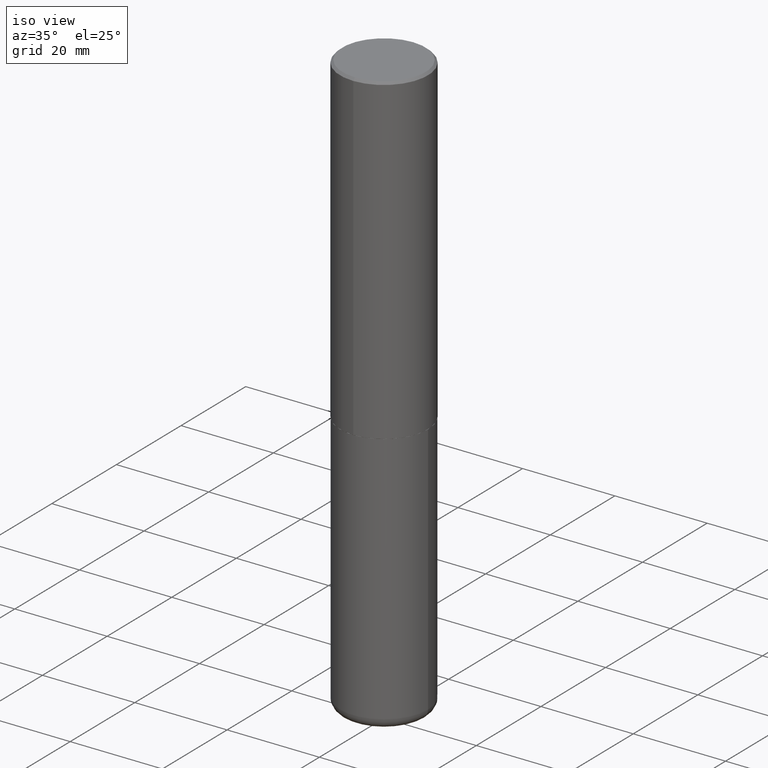
[diagram: clean part render]
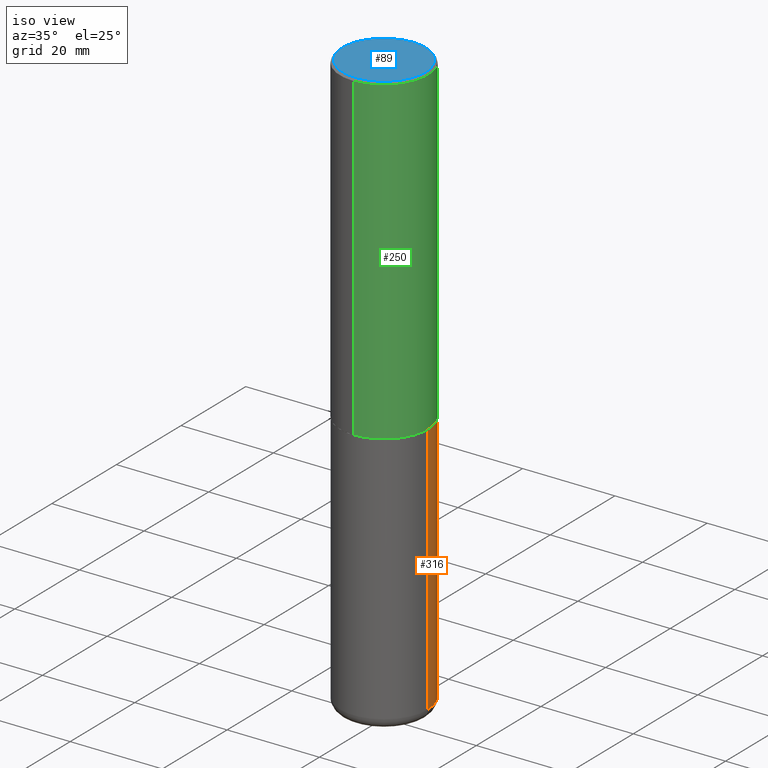
[diagram: same view with three faces highlighted in distinct colors, each labeled with its STEP entity id]
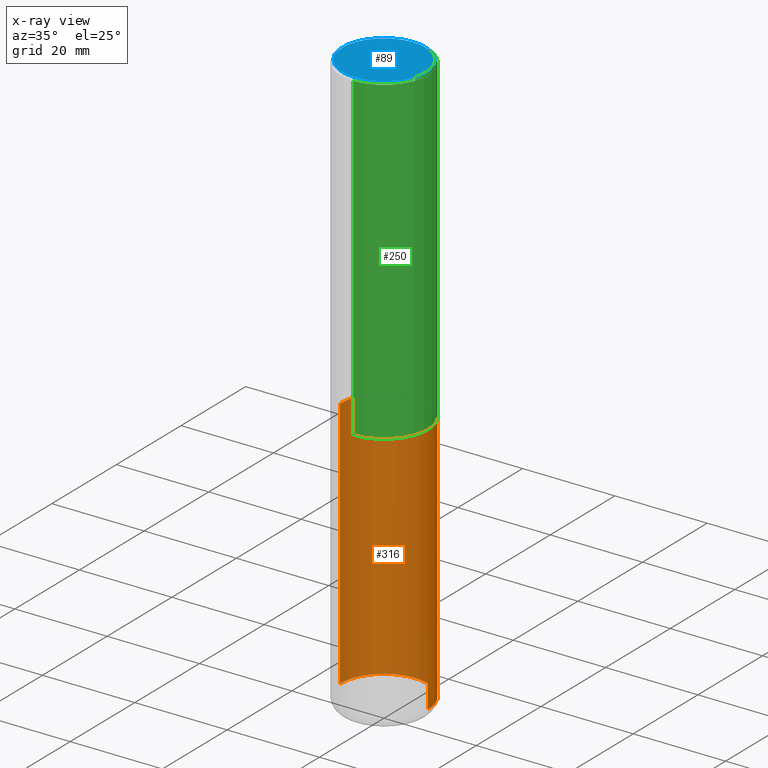
[diagram: x-ray of the same camera — body ghosted, the three highlighted faces saturated]
A machine part, iso view with three faces highlighted in distinct colors.
The next image is the same camera in x-ray (body ghosted, the three faces saturated) — at least one of them is partly hidden behind the body in this view.
Their STEP definitions:

[orange] entity #316 — the highlighted cylindrical surface (partial cylindrical patch) has radius 9.525 mm, axis along (-0, 0, 1).
#2 = ORIENTED_EDGE ( 'NONE', *, *, #14, .T. ) ;
#4 = DIRECTION ( 'NONE',  ( -2.445468806185136877E-29, 3.491481338843145188E-15, 1.000000000000000000 ) ) ;
#11 = LINE ( 'NONE', #202, #33 ) ;
#14 = EDGE_CURVE ( 'NONE', #337, #113, #383, .T. ) ;
#33 = VECTOR ( 'NONE', #4, 39.37007874015748143 ) ;
#45 = ORIENTED_EDGE ( 'NONE', *, *, #342, .F. ) ;
#54 = ORIENTED_EDGE ( 'NONE', *, *, #99, .T. ) ;
#67 = DIRECTION ( 'NONE',  ( 1.000000000000000000, -6.982962677686266711E-15, 4.876176775795935793E-29 ) ) ;
#91 = VECTOR ( 'NONE', #230, 39.37007874015748143 ) ;
#98 = CARTESIAN_POINT ( 'NONE',  ( -0.3749999999999999445, 2.664535259100375303E-15, -1.844600658845589318E-29 ) ) ;
#99 = EDGE_CURVE ( 'NONE', #310, #337, #109, .T. ) ;
#109 = CIRCLE ( 'NONE', #394, 0.3749999999999999445 ) ;
#113 = VERTEX_POINT ( 'NONE', #204 ) ;
#114 = EDGE_CURVE ( 'NONE', #310, #218, #11, .T. ) ;
#115 = CIRCLE ( 'NONE', #339, 0.3750000000000000555 ) ;
#125 = CARTESIAN_POINT ( 'NONE',  ( 6.725039217009124520E-29, -9.601573681818649859E-15, -2.750000000000000000 ) ) ;
#132 = DIRECTION ( 'NONE',  ( -2.445468806185136597E-29, 3.491481338843145583E-15, 1.000000000000000000 ) ) ;
#134 = CYLINDRICAL_SURFACE ( 'NONE', #246, 0.3749999999999999445 ) ;
#159 = ORIENTED_EDGE ( 'NONE', *, *, #114, .F. ) ;
#202 = CARTESIAN_POINT ( 'NONE',  ( 0.3749999999999999445, -2.618611004132349622E-15, 1.828566290923475642E-29 ) ) ;
#204 = CARTESIAN_POINT ( 'NONE',  ( -0.3750000000000000555, -1.070783826866887333E-14, -2.750000000000000000 ) ) ;
#218 = VERTEX_POINT ( 'NONE', #363 ) ;
#221 = CARTESIAN_POINT ( 'NONE',  ( 0.3749999999999999445, -1.976178437785219664E-14, -4.910000000000000142 ) ) ;
#228 = DIRECTION ( 'NONE',  ( -2.445468806185136597E-29, 3.491481338843145583E-15, 1.000000000000000000 ) ) ;
#230 = DIRECTION ( 'NONE',  ( -2.445468806185136877E-29, 3.491481338843145188E-15, 1.000000000000000000 ) ) ;
#246 = AXIS2_PLACEMENT_3D ( 'NONE', #264, #254, #67 ) ;
#252 = DIRECTION ( 'NONE',  ( 1.000000000000000000, -6.982962677686266711E-15, 0.000000000000000000 ) ) ;
#254 = DIRECTION ( 'NONE',  ( -2.445468806185136597E-29, 3.491481338843145583E-15, 1.000000000000000000 ) ) ;
#263 = EDGE_LOOP ( 'NONE', ( #54, #2, #45, #159 ) ) ;
#264 = CARTESIAN_POINT ( 'NONE',  ( 0.000000000000000000, 0.000000000000000000, 0.000000000000000000 ) ) ;
#301 = DIRECTION ( 'NONE',  ( 1.000000000000000000, -6.982962677686269077E-15, 0.000000000000000000 ) ) ;
#310 = VERTEX_POINT ( 'NONE', #221 ) ;
#316 = ADVANCED_FACE ( 'NONE', ( #324 ), #134, .T. ) ;
#319 = CARTESIAN_POINT ( 'NONE',  ( -0.3749999999999999445, -1.447863811461947092E-14, -4.910000000000000142 ) ) ;
#320 = CARTESIAN_POINT ( 'NONE',  ( 1.200725183836902132E-28, -1.714317337371984662E-14, -4.910000000000000142 ) ) ;
#324 = FACE_OUTER_BOUND ( 'NONE', #263, .T. ) ;
#337 = VERTEX_POINT ( 'NONE', #319 ) ;
#339 = AXIS2_PLACEMENT_3D ( 'NONE', #125, #132, #252 ) ;
#342 = EDGE_CURVE ( 'NONE', #218, #113, #115, .T. ) ;
#363 = CARTESIAN_POINT ( 'NONE',  ( 0.3750000000000000555, -1.222018468595100145E-14, -2.750000000000000000 ) ) ;
#383 = LINE ( 'NONE', #98, #91 ) ;
#394 = AXIS2_PLACEMENT_3D ( 'NONE', #320, #228, #301 ) ;

[blue] entity #89 — the highlighted planar face has unit normal (0, -0, -1).
#15 = AXIS2_PLACEMENT_3D ( 'NONE', #198, #345, #162 ) ;
#62 = DIRECTION ( 'NONE',  ( 2.446040391741596045E-29, -3.490662795793665557E-15, -1.000000000000000000 ) ) ;
#89 = ADVANCED_FACE ( 'NONE', ( #129 ), #257, .F. ) ;
#103 = CARTESIAN_POINT ( 'NONE',  ( -2.504081769186608216E-15, -0.3549999999999999822, 1.285848347115290366E-15 ) ) ;
#129 = FACE_OUTER_BOUND ( 'NONE', #280, .T. ) ;
#148 = AXIS2_PLACEMENT_3D ( 'NONE', #176, #361, #332 ) ;
#162 = DIRECTION ( 'NONE',  ( -6.982962677686265922E-15, -1.000000000000000000, 3.490662795793665557E-15 ) ) ;
#176 = CARTESIAN_POINT ( 'NONE',  ( -1.141397163745304909E-45, 1.628849886601155835E-31, 4.666305460853910467E-17 ) ) ;
#177 = EDGE_CURVE ( 'NONE', #215, #220, #185, .T. ) ;
#185 = CIRCLE ( 'NONE', #148, 0.3549999999999999822 ) ;
#198 = CARTESIAN_POINT ( 'NONE',  ( -1.141397163745304909E-45, 1.628849886601155835E-31, 4.666305460853910467E-17 ) ) ;
#215 = VERTEX_POINT ( 'NONE', #357 ) ;
#220 = VERTEX_POINT ( 'NONE', #103 ) ;
#240 = CIRCLE ( 'NONE', #15, 0.3549999999999999822 ) ;
#257 = PLANE ( 'NONE',  #292 ) ;
#280 = EDGE_LOOP ( 'NONE', ( #341, #312 ) ) ;
#292 = AXIS2_PLACEMENT_3D ( 'NONE', #349, #62, #380 ) ;
#312 = ORIENTED_EDGE ( 'NONE', *, *, #325, .T. ) ;
#325 = EDGE_CURVE ( 'NONE', #220, #215, #240, .T. ) ;
#332 = DIRECTION ( 'NONE',  ( -6.982962677686265922E-15, -1.000000000000000000, 3.490662795793665557E-15 ) ) ;
#341 = ORIENTED_EDGE ( 'NONE', *, *, #177, .T. ) ;
#345 = DIRECTION ( 'NONE',  ( -2.446040391741596606E-29, 3.490662795793665557E-15, 1.000000000000000000 ) ) ;
#349 = CARTESIAN_POINT ( 'NONE',  ( 2.478951750578624209E-15, 0.3549999999999999822, -1.215853765202481601E-15 ) ) ;
#357 = CARTESIAN_POINT ( 'NONE',  ( 2.548781377355487113E-15, 0.3549999999999999822, -1.192522237898212341E-15 ) ) ;
#361 = DIRECTION ( 'NONE',  ( -2.446040391741596606E-29, 3.490662795793665557E-15, 1.000000000000000000 ) ) ;
#380 = DIRECTION ( 'NONE',  ( 6.982962677686265922E-15, 1.000000000000000000, -3.490662795793665557E-15 ) ) ;

[green] entity #250 — the highlighted cylindrical surface (partial cylindrical patch) has radius 9.525 mm, axis along (-0, 0, 1).
#3 = DIRECTION ( 'NONE',  ( -2.446040391741596606E-29, 3.490662795793665557E-15, 1.000000000000000000 ) ) ;
#6 = LINE ( 'NONE', #140, #92 ) ;
#20 = AXIS2_PLACEMENT_3D ( 'NONE', #350, #260, #137 ) ;
#28 = DIRECTION ( 'NONE',  ( -6.982962677686265922E-15, -1.000000000000000000, 3.494488891895536035E-15 ) ) ;
#30 = DIRECTION ( 'NONE',  ( -2.446040391741596606E-29, 3.490662795793665557E-15, 1.000000000000000000 ) ) ;
#31 = ORIENTED_EDGE ( 'NONE', *, *, #298, .T. ) ;
#35 = DIRECTION ( 'NONE',  ( -6.982962677686265922E-15, -1.000000000000000000, 2.913971193241877611E-15 ) ) ;
#47 = VERTEX_POINT ( 'NONE', #126 ) ;
#48 = AXIS2_PLACEMENT_3D ( 'NONE', #96, #197, #28 ) ;
#55 = ORIENTED_EDGE ( 'NONE', *, *, #335, .T. ) ;
#61 = CARTESIAN_POINT ( 'NONE',  ( 2.664535259100376880E-15, 0.3750000000000002220, -1.308998548422625521E-15 ) ) ;
#64 = VERTEX_POINT ( 'NONE', #251 ) ;
#84 = EDGE_CURVE ( 'NONE', #47, #64, #239, .T. ) ;
#92 = VECTOR ( 'NONE', #3, 39.37007874015748143 ) ;
#96 = CARTESIAN_POINT ( 'NONE',  ( 4.892080783483214581E-31, -6.981325591587361238E-17, -0.02000000000000008715 ) ) ;
#110 = CIRCLE ( 'NONE', #366, 0.3750000000000003886 ) ;
#126 = CARTESIAN_POINT ( 'NONE',  ( -2.572686749164323547E-15, -0.3750000000000001110, -0.01999999999999877570 ) ) ;
#137 = DIRECTION ( 'NONE',  ( -6.982962677686266711E-15, -1.000000000000000000, 3.490662795793665951E-15 ) ) ;
#140 = CARTESIAN_POINT ( 'NONE',  ( -2.618611004132351594E-15, -0.3750000000000002220, 1.308998548422625521E-15 ) ) ;
#197 = DIRECTION ( 'NONE',  ( -2.446040391741596606E-29, 3.490662795793665557E-15, 1.000000000000000000 ) ) ;
#217 = ORIENTED_EDGE ( 'NONE', *, *, #84, .F. ) ;
#226 = EDGE_CURVE ( 'NONE', #247, #47, #6, .T. ) ;
#227 = FACE_OUTER_BOUND ( 'NONE', #405, .T. ) ;
#239 = CIRCLE ( 'NONE', #48, 0.3750000000000000555 ) ;
#247 = VERTEX_POINT ( 'NONE', #374 ) ;
#250 = ADVANCED_FACE ( 'NONE', ( #227 ), #377, .T. ) ;
#251 = CARTESIAN_POINT ( 'NONE',  ( 2.618611004132350411E-15, 0.3749999999999999445, -0.02000000000000139513 ) ) ;
#260 = DIRECTION ( 'NONE',  ( -2.446040391741596606E-29, 3.490662795793665557E-15, 1.000000000000000000 ) ) ;
#277 = VERTEX_POINT ( 'NONE', #356 ) ;
#287 = CARTESIAN_POINT ( 'NONE',  ( 6.724165036897648492E-29, -9.595832025636787455E-15, -2.749000000000000110 ) ) ;
#298 = EDGE_CURVE ( 'NONE', #277, #64, #384, .T. ) ;
#314 = VECTOR ( 'NONE', #30, 39.37007874015748143 ) ;
#335 = EDGE_CURVE ( 'NONE', #247, #277, #110, .T. ) ;
#350 = CARTESIAN_POINT ( 'NONE',  ( 0.000000000000000000, 0.000000000000000000, 0.000000000000000000 ) ) ;
#356 = CARTESIAN_POINT ( 'NONE',  ( 2.664535259100411196E-15, 0.3749999999999907296, -2.749000000000000998 ) ) ;
#366 = AXIS2_PLACEMENT_3D ( 'NONE', #287, #410, #35 ) ;
#372 = ORIENTED_EDGE ( 'NONE', *, *, #226, .F. ) ;
#374 = CARTESIAN_POINT ( 'NONE',  ( -2.618611004132284935E-15, -0.3750000000000099920, -2.748999999999999222 ) ) ;
#377 = CYLINDRICAL_SURFACE ( 'NONE', #20, 0.3750000000000002220 ) ;
#384 = LINE ( 'NONE', #61, #314 ) ;
#405 = EDGE_LOOP ( 'NONE', ( #55, #31, #217, #372 ) ) ;
#410 = DIRECTION ( 'NONE',  ( -2.446040391741596606E-29, 3.490662795793665557E-15, 1.000000000000000000 ) ) ;